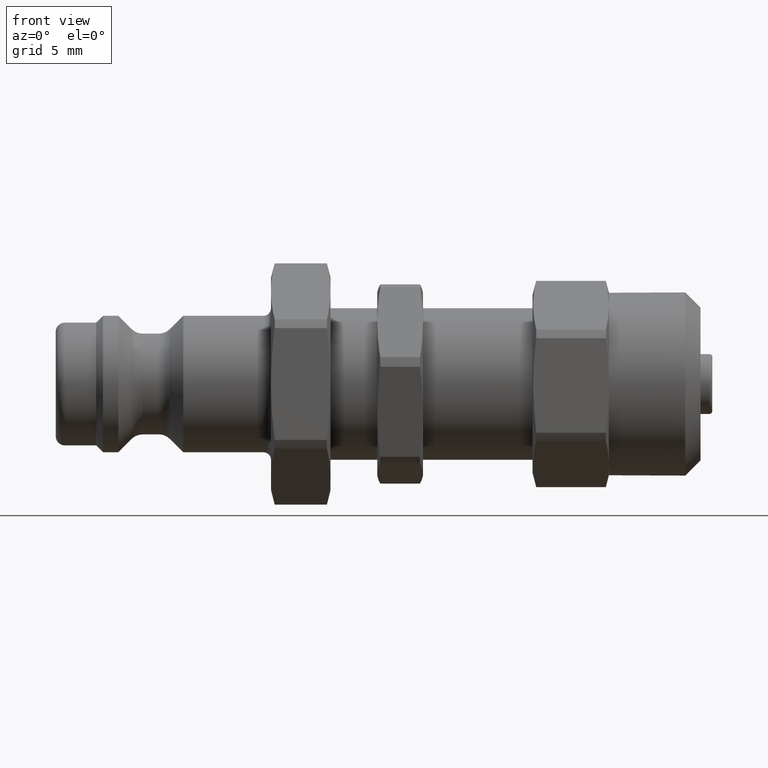
[diagram: clean part render]
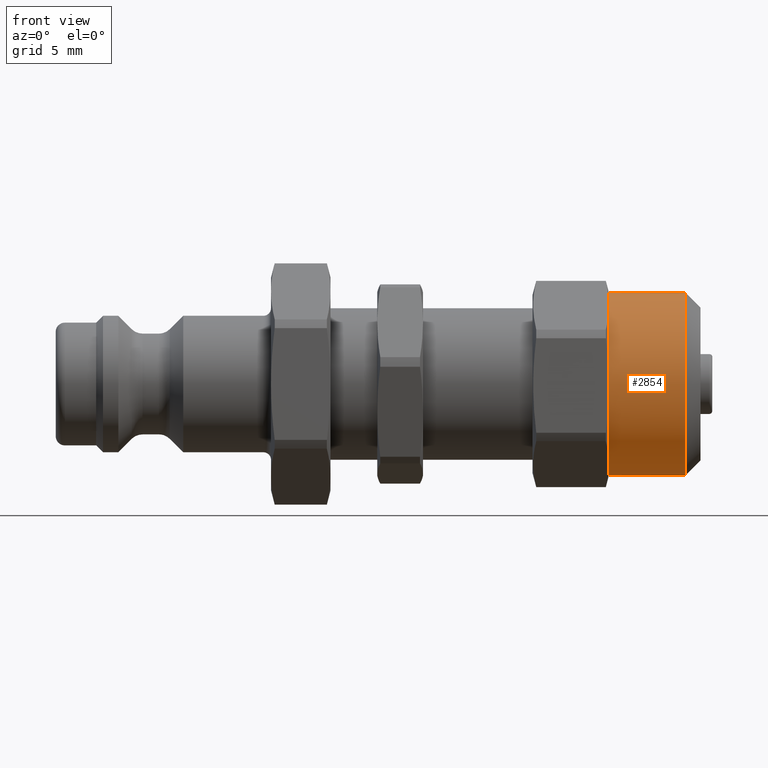
[diagram: same view with one face highlighted and labeled with its STEP entity id]
A machine part, front view. The second image highlights one B-rep face of the part: STEP entity #2854.
In plain terms, the highlighted cylindrical surface (bore or boss wall) has radius 6 mm, axis along (-1, 0, -0).
Its self-contained STEP definition (entity closure, byte-faithful):
#2758=CARTESIAN_POINT('',(1.0,6.000000000000001,-7.347881E-016));
#2759=VERTEX_POINT('',#2758);
#2760=CARTESIAN_POINT('',(1.0,1.224647E-016,0.0));
#2761=DIRECTION('',(-1.0,0.0,0.0));
#2762=DIRECTION('',(0.0,-1.0,0.0));
#2763=AXIS2_PLACEMENT_3D('',#2760,#2761,#2762);
#2764=CIRCLE('',#2763,6.000000000000001);
#2765=EDGE_CURVE('',#2759,#2759,#2764,.T.);
#2790=CARTESIAN_POINT('',(3.000000000000001,3.673940E-016,0.0));
#2791=DIRECTION('',(1.0,1.224647E-016,0.0));
#2792=DIRECTION('',(0.0,1.0,0.0));
#2793=AXIS2_PLACEMENT_3D('',#2790,#2791,#2792);
#2794=CYLINDRICAL_SURFACE('',#2793,6.000000000000001);
#2795=CARTESIAN_POINT('',(6.000000000000001,6.000000000000001,0.0));
#2796=VERTEX_POINT('',#2795);
#2797=CARTESIAN_POINT('',(6.000000000000001,3.000000000000002,5.196152422706632));
#2798=VERTEX_POINT('',#2797);
#2799=CARTESIAN_POINT('',(6.000000000000002,7.347881E-016,0.0));
#2800=DIRECTION('',(1.0,0.0,0.0));
#2801=DIRECTION('',(0.0,1.0,0.0));
#2802=AXIS2_PLACEMENT_3D('',#2799,#2800,#2801);
#2803=CIRCLE('',#2802,6.0);
#2804=EDGE_CURVE('',#2796,#2798,#2803,.T.);
#2805=ORIENTED_EDGE('',*,*,#2804,.F.);
#2806=CARTESIAN_POINT('',(6.000000000000001,2.999999999999996,-5.196152422706635));
#2807=VERTEX_POINT('',#2806);
#2808=CARTESIAN_POINT('',(6.000000000000002,7.347881E-016,0.0));
#2809=DIRECTION('',(1.0,0.0,0.0));
#2810=DIRECTION('',(0.0,1.0,0.0));
#2811=AXIS2_PLACEMENT_3D('',#2808,#2809,#2810);
#2812=CIRCLE('',#2811,6.0);
#2813=EDGE_CURVE('',#2807,#2796,#2812,.T.);
#2814=ORIENTED_EDGE('',*,*,#2813,.F.);
#2815=CARTESIAN_POINT('',(6.000000000000001,-3.000000000000002,-5.19615242270663));
#2816=VERTEX_POINT('',#2815);
#2817=CARTESIAN_POINT('',(6.000000000000002,7.347881E-016,0.0));
#2818=DIRECTION('',(1.0,0.0,0.0));
#2819=DIRECTION('',(0.0,1.0,0.0));
#2820=AXIS2_PLACEMENT_3D('',#2817,#2818,#2819);
#2821=CIRCLE('',#2820,6.0);
#2822=EDGE_CURVE('',#2816,#2807,#2821,.T.);
#2823=ORIENTED_EDGE('',*,*,#2822,.F.);
#2824=CARTESIAN_POINT('',(6.000000000000002,-6.000000000000001,9.992007E-016));
#2825=VERTEX_POINT('',#2824);
#2826=CARTESIAN_POINT('',(6.000000000000002,7.347881E-016,0.0));
#2827=DIRECTION('',(1.0,0.0,0.0));
#2828=DIRECTION('',(0.0,1.0,0.0));
#2829=AXIS2_PLACEMENT_3D('',#2826,#2827,#2828);
#2830=CIRCLE('',#2829,6.0);
#2831=EDGE_CURVE('',#2825,#2816,#2830,.T.);
#2832=ORIENTED_EDGE('',*,*,#2831,.F.);
#2833=CARTESIAN_POINT('',(6.000000000000001,-2.999999999999999,5.196152422706634));
#2834=VERTEX_POINT('',#2833);
#2835=CARTESIAN_POINT('',(6.000000000000002,7.347881E-016,0.0));
#2836=DIRECTION('',(1.0,0.0,0.0));
#2837=DIRECTION('',(0.0,1.0,0.0));
#2838=AXIS2_PLACEMENT_3D('',#2835,#2836,#2837);
#2839=CIRCLE('',#2838,6.0);
#2840=EDGE_CURVE('',#2834,#2825,#2839,.T.);
#2841=ORIENTED_EDGE('',*,*,#2840,.F.);
#2842=CARTESIAN_POINT('',(6.000000000000002,7.347881E-016,0.0));
#2843=DIRECTION('',(1.0,0.0,0.0));
#2844=DIRECTION('',(0.0,1.0,0.0));
#2845=AXIS2_PLACEMENT_3D('',#2842,#2843,#2844);
#2846=CIRCLE('',#2845,6.0);
#2847=EDGE_CURVE('',#2798,#2834,#2846,.T.);
#2848=ORIENTED_EDGE('',*,*,#2847,.F.);
#2849=EDGE_LOOP('',(#2805,#2814,#2823,#2832,#2841,#2848));
#2850=FACE_OUTER_BOUND('',#2849,.T.);
#2851=ORIENTED_EDGE('',*,*,#2765,.F.);
#2852=EDGE_LOOP('',(#2851));
#2853=FACE_BOUND('',#2852,.T.);
#2854=ADVANCED_FACE('',(#2850,#2853),#2794,.T.);